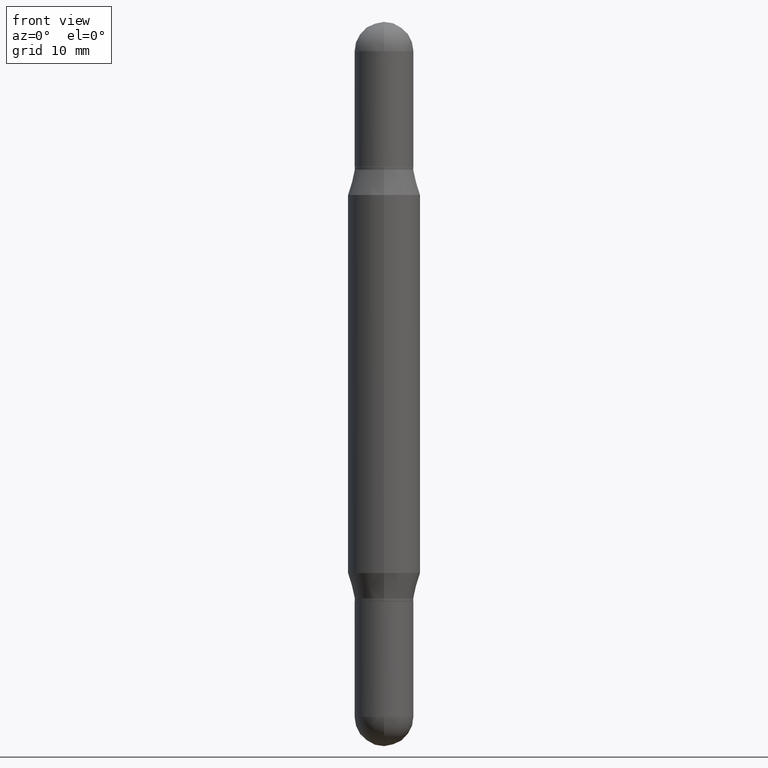
[diagram: clean part render]
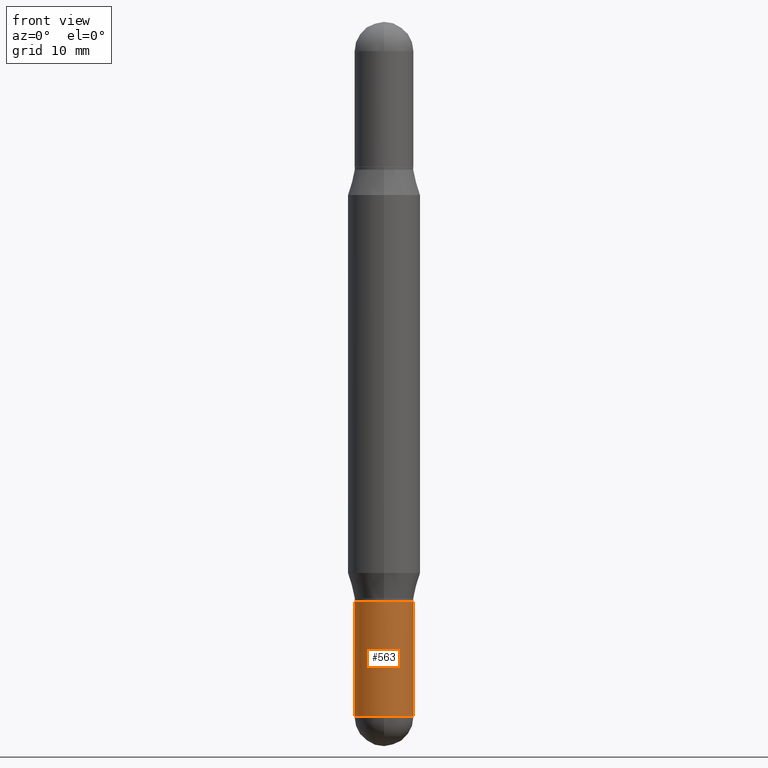
[diagram: same view with one face highlighted and labeled with its STEP entity id]
A machine part, front view. The second image highlights one B-rep face of the part: STEP entity #563.
In plain terms, the highlighted cylindrical surface (edge-blend (fillet) strip) has radius 2.5794 mm, axis along (-0, 0, 1).
Its self-contained STEP definition (entity closure, byte-faithful):
#4 = CARTESIAN_POINT ( 'NONE',  ( -7.215561481643230770E-16, -0.1015500000000083697, -2.398449999999999971 ) ) ;
#23 = CIRCLE ( 'NONE', #818, 0.1015500000000000985 ) ;
#108 = EDGE_CURVE ( 'NONE', #948, #1052, #891, .T. ) ;
#110 = CARTESIAN_POINT ( 'NONE',  ( 0.000000000000000000, 0.000000000000000000, 0.000000000000000000 ) ) ;
#120 = AXIS2_PLACEMENT_3D ( 'NONE', #1106, #258, #333 ) ;
#180 = EDGE_CURVE ( 'NONE', #1052, #740, #23, .T. ) ;
#186 = VERTEX_POINT ( 'NONE', #447 ) ;
#196 = DIRECTION ( 'NONE',  ( 1.000000000000000000, -6.982962677686258033E-15, 0.000000000000000000 ) ) ;
#197 = EDGE_CURVE ( 'NONE', #740, #186, #767, .T. ) ;
#200 = CARTESIAN_POINT ( 'NONE',  ( -0.1015500000000000708, 7.215561481643822416E-16, -4.995178584153860605E-30 ) ) ;
#206 = DIRECTION ( 'NONE',  ( 1.000000000000000000, -6.982962677686266711E-15, 4.876176775795936353E-29 ) ) ;
#248 = AXIS2_PLACEMENT_3D ( 'NONE', #110, #289, #206 ) ;
#258 = DIRECTION ( 'NONE',  ( -2.445468806185136597E-29, 3.491481338843145583E-15, 1.000000000000000000 ) ) ;
#266 = CARTESIAN_POINT ( 'NONE',  ( -0.1015500000000000985, -6.956996899252935124E-15, -2.398450000000000415 ) ) ;
#271 = EDGE_CURVE ( 'NONE', #330, #186, #608, .T. ) ;
#289 = DIRECTION ( 'NONE',  ( -2.445468806185136597E-29, 3.491481338843145583E-15, 1.000000000000000000 ) ) ;
#295 = FACE_OUTER_BOUND ( 'NONE', #494, .T. ) ;
#311 = DIRECTION ( 'NONE',  ( -2.445468806185136597E-29, 3.491481338843145583E-15, 1.000000000000000000 ) ) ;
#317 = DIRECTION ( 'NONE',  ( 1.000000000000000000, -6.982962677686258033E-15, 0.000000000000000000 ) ) ;
#326 = ORIENTED_EDGE ( 'NONE', *, *, #180, .T. ) ;
#330 = VERTEX_POINT ( 'NONE', #398 ) ;
#333 = DIRECTION ( 'NONE',  ( 1.000000000000000000, -6.982962677686269866E-15, 0.000000000000000000 ) ) ;
#398 = CARTESIAN_POINT ( 'NONE',  ( -0.1015500000000000708, -6.956996899252935124E-15, -2.000000000000000000 ) ) ;
#425 = VECTOR ( 'NONE', #453, 39.37007874015748143 ) ;
#441 = CARTESIAN_POINT ( 'NONE',  ( 0.1015500000000000708, -7.091198599190408807E-16, 4.951757515820776576E-30 ) ) ;
#447 = CARTESIAN_POINT ( 'NONE',  ( 0.1015500000000000708, -7.692082537605332736E-15, -2.000000000000000000 ) ) ;
#453 = DIRECTION ( 'NONE',  ( -2.445468806185136877E-29, 3.491481338843145188E-15, 1.000000000000000000 ) ) ;
#479 = CARTESIAN_POINT ( 'NONE',  ( 5.865334658194741045E-29, -8.374143417148343763E-15, -2.398450000000000415 ) ) ;
#494 = EDGE_LOOP ( 'NONE', ( #706, #1093, #326, #976, #687 ) ) ;
#499 = EDGE_CURVE ( 'NONE', #948, #330, #731, .T. ) ;
#563 = ADVANCED_FACE ( 'NONE', ( #295 ), #985, .T. ) ;
#577 = VECTOR ( 'NONE', #1046, 39.37007874015748143 ) ;
#608 = CIRCLE ( 'NONE', #120, 0.1015500000000000708 ) ;
#627 = CARTESIAN_POINT ( 'NONE',  ( 5.865334658194741045E-29, -8.374143417148343763E-15, -2.398450000000000415 ) ) ;
#687 = ORIENTED_EDGE ( 'NONE', *, *, #271, .F. ) ;
#706 = ORIENTED_EDGE ( 'NONE', *, *, #499, .F. ) ;
#707 = CARTESIAN_POINT ( 'NONE',  ( 0.1015500000000000985, -8.387672907336357852E-15, -2.398450000000000415 ) ) ;
#731 = LINE ( 'NONE', #200, #577 ) ;
#740 = VERTEX_POINT ( 'NONE', #707 ) ;
#767 = LINE ( 'NONE', #441, #425 ) ;
#781 = AXIS2_PLACEMENT_3D ( 'NONE', #479, #311, #317 ) ;
#818 = AXIS2_PLACEMENT_3D ( 'NONE', #627, #1115, #196 ) ;
#891 = CIRCLE ( 'NONE', #781, 0.1015500000000000985 ) ;
#948 = VERTEX_POINT ( 'NONE', #266 ) ;
#976 = ORIENTED_EDGE ( 'NONE', *, *, #197, .T. ) ;
#985 = CYLINDRICAL_SURFACE ( 'NONE', #248, 0.1015500000000000708 ) ;
#1046 = DIRECTION ( 'NONE',  ( -2.445468806185136877E-29, 3.491481338843145188E-15, 1.000000000000000000 ) ) ;
#1052 = VERTEX_POINT ( 'NONE', #4 ) ;
#1093 = ORIENTED_EDGE ( 'NONE', *, *, #108, .T. ) ;
#1106 = CARTESIAN_POINT ( 'NONE',  ( 4.890937612370273194E-29, -6.982962677686291165E-15, -2.000000000000000000 ) ) ;
#1115 = DIRECTION ( 'NONE',  ( -2.445468806185136597E-29, 3.491481338843145583E-15, 1.000000000000000000 ) ) ;